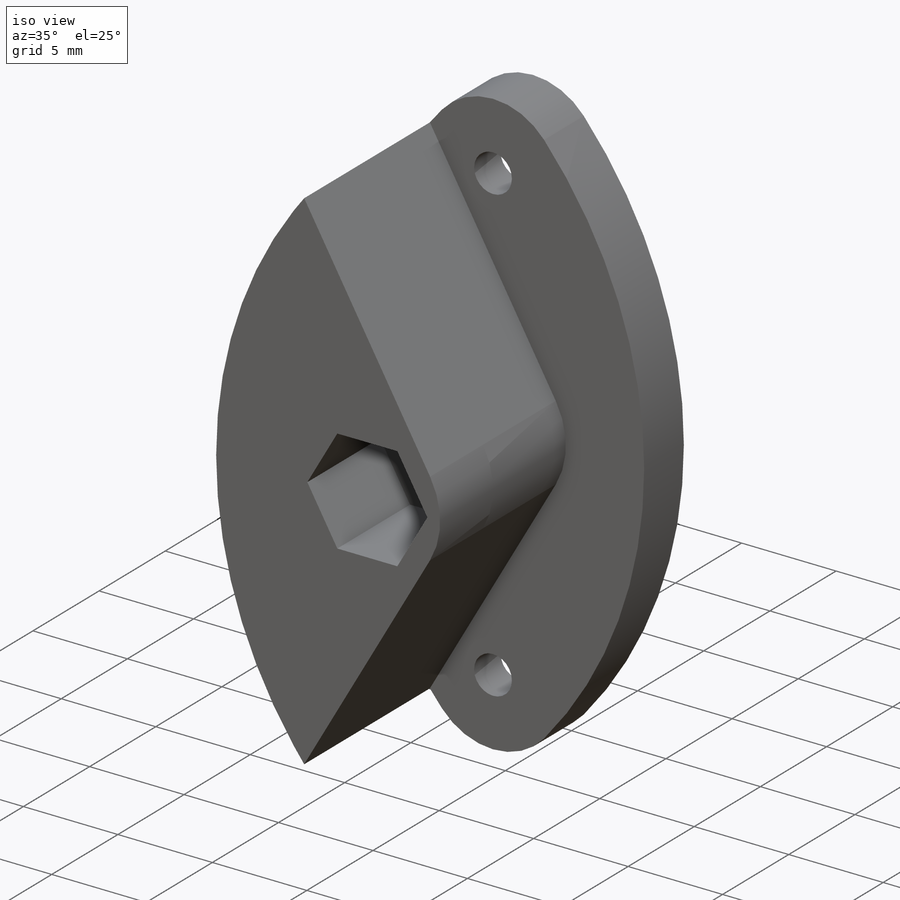
[diagram: iso view]
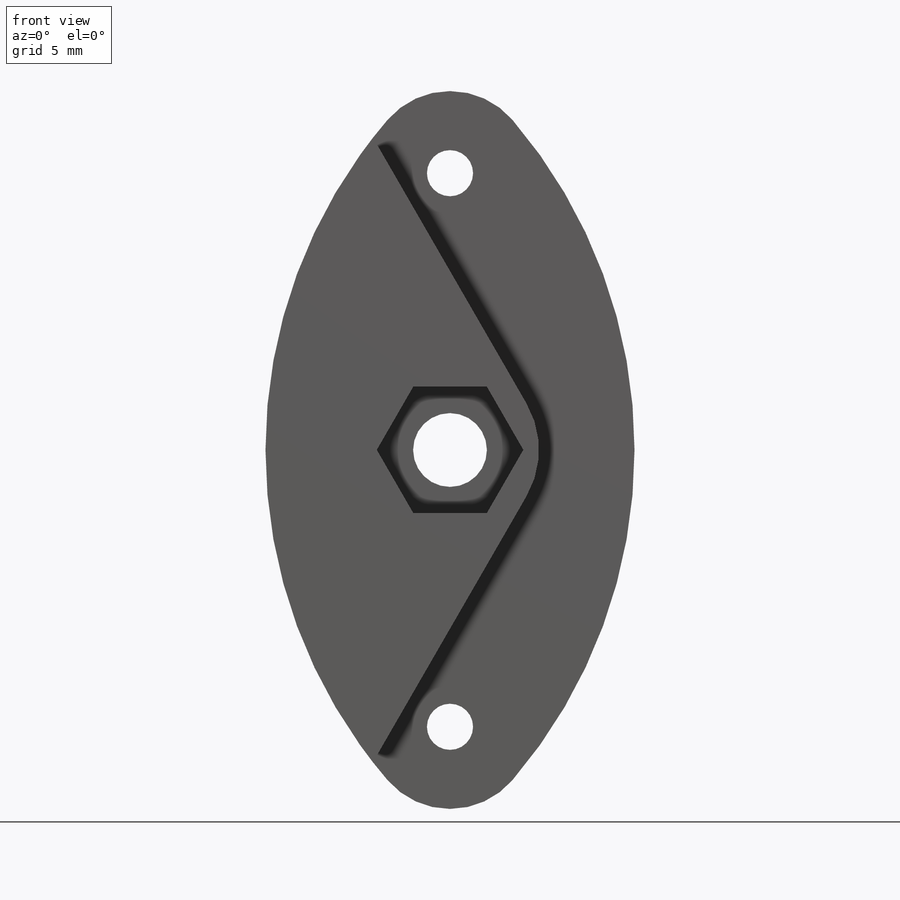
[diagram: front view]
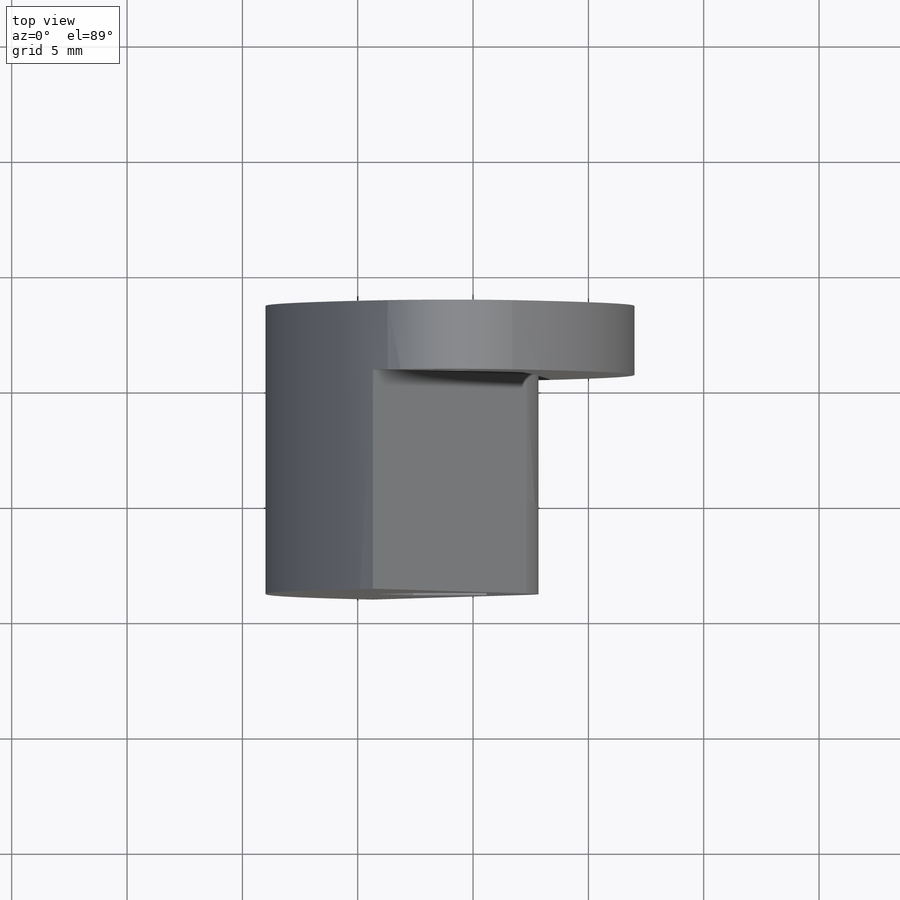
[diagram: top view]
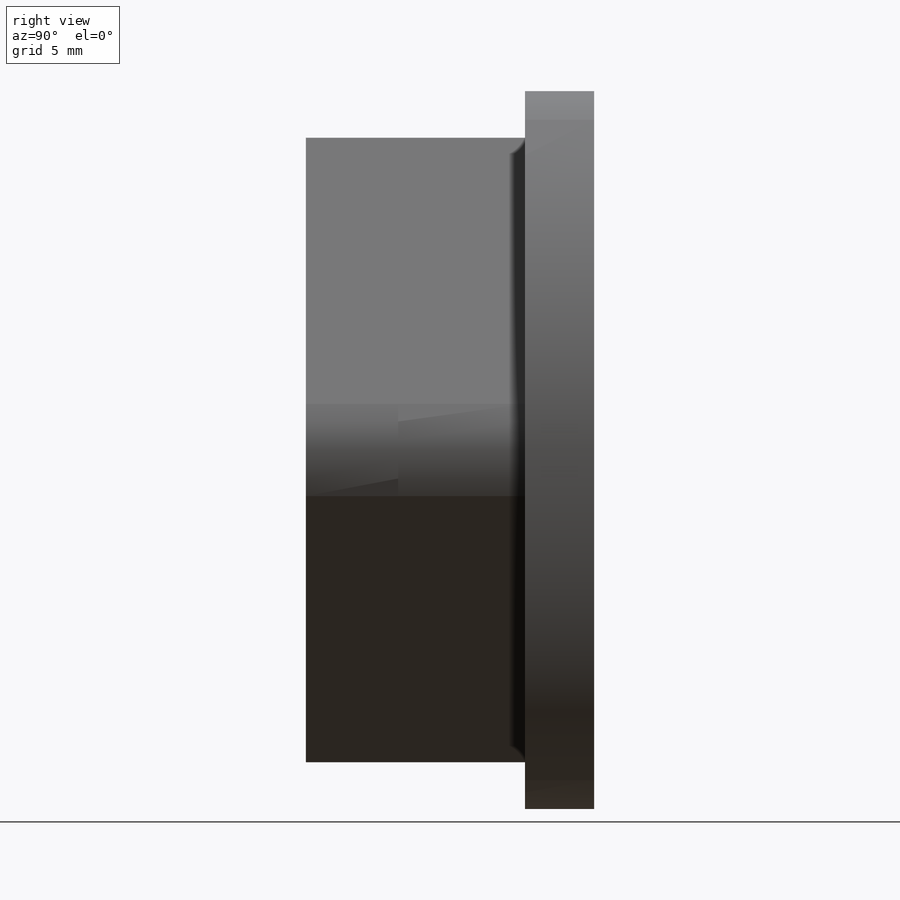
[diagram: right view]
SOLIDWORKS PART (.sldprt)
format: sldprt  version: not decoded by parser v0  size: 1,463,296 bytes
history: native  units: mm
features: sketch x17, cut_extrude x8, plane x3, extrude x3, hole x3, fillet x2, thread x2, material x1 (+12 scaffold rows collapsed; 3 parser-record rows omitted)
feature tree (54):
  scaffold x12  (default folders/planes/origin — collapsed)
  material  "PVC hart"
  plane  "Ebene vorne"
  plane  "Ebene oben"
  plane  "Ebene rechts"
  parser-record x3  (decoder bookkeeping rows leaked as tree rows — omitted from the tree; the rows remain in map.json)
  sketch  "Skizze1"  dims[c1.D1=32.0mm c1.D6=44.0mm c1.D7=4.0mm c1.D2=22.0mm c2.D1=32.0mm c2.D2=4.0mm c2.D3=5.5mm c2.D4=14.0mm c3.D2=4.0mm c3.D5=24.0mm c3.D8=30.5mm c3.D9=27.0mm]
  extrude  "Aufsatz-Linear austragen1"  Depth=5.5mm
  fillet  "Verrundung1"  Radius=4mm
  extrude  "Aufsatz-Linear austragen4"  [1 undecoded]
  sketch  "Skizze1<4>"  dims[D1=3.0mm]
  sketch  "Skizze3"  dims[D1=2.0mm D2=18.0mm D3=11.0mm]
  cut_extrude  "Schnitt-Linear austragen1"  Depth=3mm
  hole  "Formsenkung für M3 Senkschraube mit Innensechskant1"  Diameter=2mm Depth=8.500025mm
  sketch  "Skizze5"
  sketch  "Skizze6"  dims[hole-wizard template sketch: 55 standard entries collapsed; hole parameters kept: c17.Bohrungstiefe=~8.500025mm c17.Senkdurchmesser (Oben)=4.0mm c17.D4=~3.666174mm c17.Senkwinkel (Oben)=90.0deg]
  cut_extrude  "Schnitt-Linear austragen2"  [1 undecoded]
  sketch  "Skizze1<5>"  dims[D1=1.5mm]
  extrude  "Aufsatz-Linear austragen5"  [1 undecoded]
  sketch  "Skizze1<6>"  dims[D1=4.0mm]
  hole  "Stirnsenkung für  M3 Zylinderschraube mit Schlitz/Kreuzschlitz1"  Diameter=3.2mm Depth=12.5mm
  sketch  "Skizze8"
  sketch  "Skizze9"  dims[hole-wizard template sketch: 42 standard entries collapsed; hole parameters kept: c12.Bohrungstiefe=12.5mm c12.Senkdurchmesser2=6.5mm c12.Senktiefe2=2.0mm]
  fillet  "Verrundung2"  Radius=4mm
  sketch  "Skizze10"  dims[c1.D1=9.0mm c1.D2=10.0mm c1.D3=16.0mm c1.D4=~12.040594mm c1.D6=7.0mm c2.D4=10.0mm c2.D5=16.7mm]
  cut_extrude  "Schnitt-Linear austragen3"  Depth=0.5mm
  cut_extrude  "Schnitt-Linear austragen4"  [1 undecoded]
  sketch  "Skizze10<3>"  dims[D1=0.5mm]
  cut_extrude  "Schnitt-Linear austragen5"  [1 undecoded]
  sketch  "Skizze10<4>"  dims[D1=3.0mm]
  sketch  "Skizze11"  dims[D1=4.0mm D2=11.0mm D3=9.0mm]
  cut_extrude  "Schnitt-Linear austragen6"  [1 undecoded]
  cut_extrude  "Schnitt-Linear austragen7"  [1 undecoded]
  sketch  "Skizze11<3>"
  hole  "M2 Gewindebohrung1"  Diameter=1.6mm Depth=4mm
  sketch  "Skizze14"  dims[D1=6.0mm D2=9.5mm]
  sketch  "Skizze13"  dims[hole-wizard template sketch: 47 standard entries collapsed; hole parameters kept: c15.Bohrungstiefe=4.0mm c15.D3=~14.816244mm c15.Spitzenwinkel=118.0deg]
  thread  "Bohrungsgewinde1"  Diameter=4mm  [1 undecoded]
  thread  "Bohrungsgewinde2"  Diameter=4mm  [1 undecoded]
  cut_extrude  "Schnitt-Linear austragen8"  [1 undecoded]
  sketch  "Skizze10<5>"
decode coverage: 23 of 35 modeling features carry decoded parameters
note: ~ marks probable driven/reference dimensions
note: 10 parameter values undecoded
summary: no parameter record found for 8 features
note: suppression state not decoded; provenance and decode notes live in map.json
